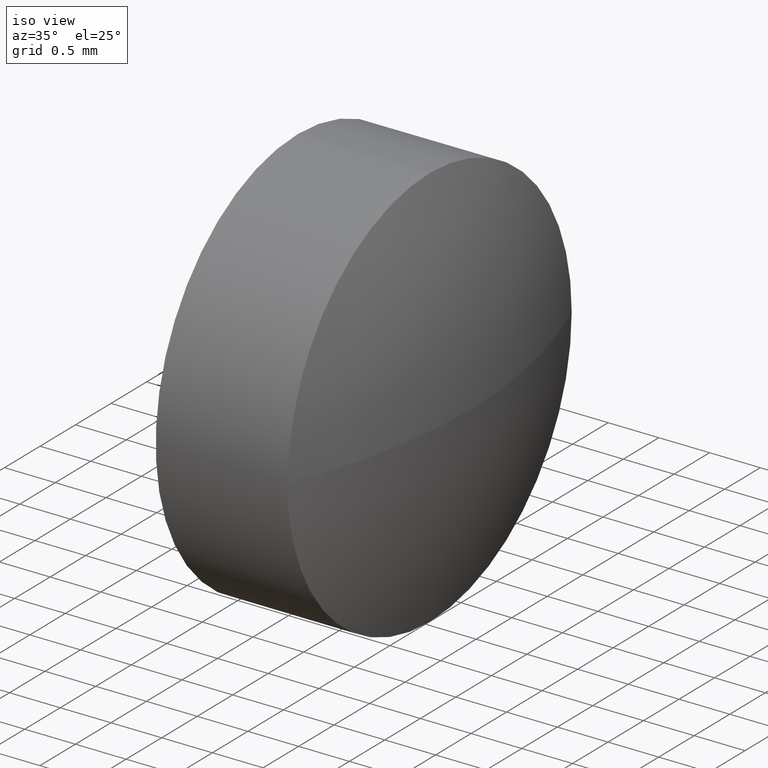
[diagram: clean part render]
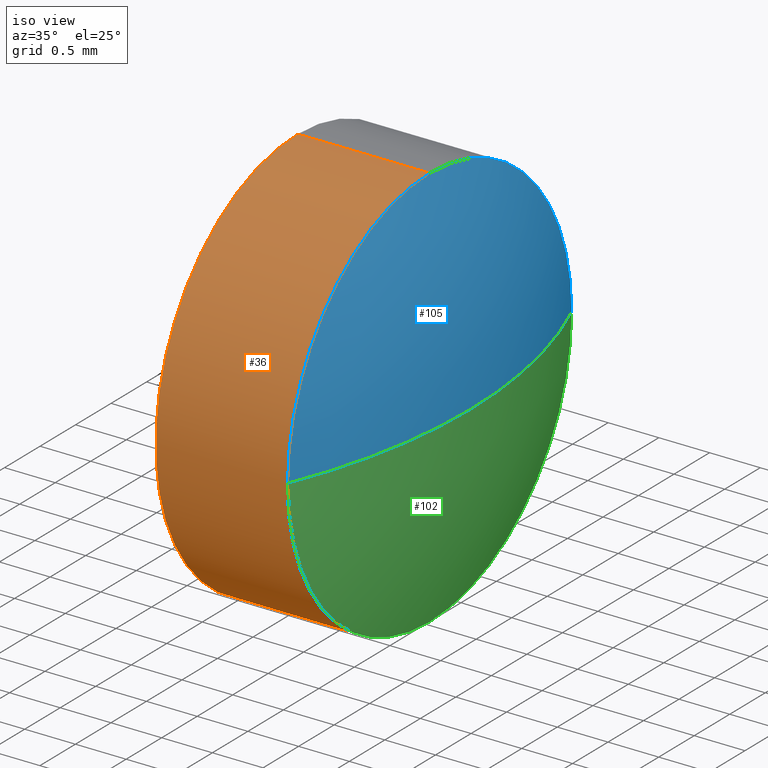
[diagram: same view with three faces highlighted in distinct colors, each labeled with its STEP entity id]
A machine part, iso view with three faces highlighted in distinct colors.
Their STEP definitions:

[orange] entity #36 — the highlighted cylindrical surface (partial cylindrical patch) has radius 2 mm, axis along (-1, -0, -0).
#5 = DIRECTION ( 'NONE',  ( 0.0000000000000000000, 0.0000000000000000000, 1.000000000000000000 ) ) ;
#12 = VECTOR ( 'NONE', #16, 1000.000000000000000 ) ;
#16 = DIRECTION ( 'NONE',  ( -1.000000000000000000, -0.0000000000000000000, -0.0000000000000000000 ) ) ;
#17 = DIRECTION ( 'NONE',  ( 0.0000000000000000000, 0.0000000000000000000, 1.000000000000000000 ) ) ;
#22 = CARTESIAN_POINT ( 'NONE',  ( 638.3832237115749400, -28.10203624254955600, -2.000000000000001800 ) ) ;
#23 = AXIS2_PLACEMENT_3D ( 'NONE', #54, #98, #71 ) ;
#30 = CIRCLE ( 'NONE', #23, 2.000000000000001800 ) ;
#31 = DIRECTION ( 'NONE',  ( -1.000000000000000000, -0.0000000000000000000, -0.0000000000000000000 ) ) ;
#35 = DIRECTION ( 'NONE',  ( -1.000000000000000000, -0.0000000000000000000, -0.0000000000000000000 ) ) ;
#36 = ADVANCED_FACE ( 'NONE', ( #169 ), #174, .T. ) ;
#37 = CARTESIAN_POINT ( 'NONE',  ( 640.1131078483556400, -28.10203624254955600, 2.000000000000001800 ) ) ;
#38 = EDGE_CURVE ( 'NONE', #40, #168, #62, .T. ) ;
#40 = VERTEX_POINT ( 'NONE', #181 ) ;
#46 = CARTESIAN_POINT ( 'NONE',  ( 638.3832237115749400, -28.10203624254955600, 0.0000000000000000000 ) ) ;
#51 = LINE ( 'NONE', #176, #81 ) ;
#54 = CARTESIAN_POINT ( 'NONE',  ( 638.8131078483555700, -28.10203624254955600, 0.0000000000000000000 ) ) ;
#58 = LINE ( 'NONE', #22, #12 ) ;
#62 = CIRCLE ( 'NONE', #136, 2.000000000000001800 ) ;
#63 = VERTEX_POINT ( 'NONE', #68 ) ;
#65 = CIRCLE ( 'NONE', #165, 2.000000000000001800 ) ;
#66 = ORIENTED_EDGE ( 'NONE', *, *, #38, .T. ) ;
#68 = CARTESIAN_POINT ( 'NONE',  ( 638.8131078483555700, -28.10203624254955600, 2.000000000000001800 ) ) ;
#71 = DIRECTION ( 'NONE',  ( 0.0000000000000000000, 0.0000000000000000000, 1.000000000000000000 ) ) ;
#74 = ORIENTED_EDGE ( 'NONE', *, *, #157, .T. ) ;
#75 = EDGE_LOOP ( 'NONE', ( #109, #74, #66, #152, #76 ) ) ;
#76 = ORIENTED_EDGE ( 'NONE', *, *, #171, .F. ) ;
#81 = VECTOR ( 'NONE', #159, 1000.000000000000000 ) ;
#86 = DIRECTION ( 'NONE',  ( 0.0000000000000000000, 0.0000000000000000000, 1.000000000000000000 ) ) ;
#98 = DIRECTION ( 'NONE',  ( -1.000000000000000000, -0.0000000000000000000, -0.0000000000000000000 ) ) ;
#104 = CARTESIAN_POINT ( 'NONE',  ( 638.8131078483555700, -28.10203624254955600, -2.000000000000001800 ) ) ;
#109 = ORIENTED_EDGE ( 'NONE', *, *, #167, .F. ) ;
#116 = CARTESIAN_POINT ( 'NONE',  ( 640.1131078483556400, -28.10203624254955600, 0.0000000000000000000 ) ) ;
#135 = DIRECTION ( 'NONE',  ( -1.000000000000000000, -0.0000000000000000000, -0.0000000000000000000 ) ) ;
#136 = AXIS2_PLACEMENT_3D ( 'NONE', #116, #31, #86 ) ;
#137 = CARTESIAN_POINT ( 'NONE',  ( 640.1131078483556400, -28.10203624254955600, 0.0000000000000000000 ) ) ;
#140 = VERTEX_POINT ( 'NONE', #104 ) ;
#152 = ORIENTED_EDGE ( 'NONE', *, *, #172, .T. ) ;
#157 = EDGE_CURVE ( 'NONE', #158, #40, #65, .T. ) ;
#158 = VERTEX_POINT ( 'NONE', #182 ) ;
#159 = DIRECTION ( 'NONE',  ( -1.000000000000000000, -0.0000000000000000000, -0.0000000000000000000 ) ) ;
#160 = AXIS2_PLACEMENT_3D ( 'NONE', #46, #35, #17 ) ;
#165 = AXIS2_PLACEMENT_3D ( 'NONE', #137, #135, #5 ) ;
#167 = EDGE_CURVE ( 'NONE', #158, #140, #58, .T. ) ;
#168 = VERTEX_POINT ( 'NONE', #37 ) ;
#169 = FACE_OUTER_BOUND ( 'NONE', #75, .T. ) ;
#171 = EDGE_CURVE ( 'NONE', #140, #63, #30, .T. ) ;
#172 = EDGE_CURVE ( 'NONE', #168, #63, #51, .T. ) ;
#174 = CYLINDRICAL_SURFACE ( 'NONE', #160, 2.000000000000001800 ) ;
#176 = CARTESIAN_POINT ( 'NONE',  ( 638.3832237115749400, -28.10203624254955600, 2.000000000000001800 ) ) ;
#181 = CARTESIAN_POINT ( 'NONE',  ( 640.1131078483556400, -30.10203624254954800, -2.449293598294668500E-016 ) ) ;
#182 = CARTESIAN_POINT ( 'NONE',  ( 640.1131078483556400, -28.10203624254955600, -2.000000000000001800 ) ) ;

[blue] entity #105 — the highlighted spherical surface has radius 5.2 mm.
#4 = CARTESIAN_POINT ( 'NONE',  ( 635.3131078483555700, -28.10203624254958000, 0.0000000000000000000 ) ) ;
#7 = ORIENTED_EDGE ( 'NONE', *, *, #151, .T. ) ;
#8 = AXIS2_PLACEMENT_3D ( 'NONE', #101, #144, #15 ) ;
#10 = AXIS2_PLACEMENT_3D ( 'NONE', #47, #21, #88 ) ;
#15 = DIRECTION ( 'NONE',  ( 0.0000000000000000000, 1.000000000000000000, 1.224646799147353000E-016 ) ) ;
#21 = DIRECTION ( 'NONE',  ( -1.000000000000000000, -0.0000000000000000000, -0.0000000000000000000 ) ) ;
#26 = EDGE_CURVE ( 'NONE', #92, #40, #149, .T. ) ;
#31 = DIRECTION ( 'NONE',  ( -1.000000000000000000, -0.0000000000000000000, -0.0000000000000000000 ) ) ;
#34 = ORIENTED_EDGE ( 'NONE', *, *, #38, .F. ) ;
#37 = CARTESIAN_POINT ( 'NONE',  ( 640.1131078483556400, -28.10203624254955600, 2.000000000000001800 ) ) ;
#38 = EDGE_CURVE ( 'NONE', #40, #168, #62, .T. ) ;
#40 = VERTEX_POINT ( 'NONE', #181 ) ;
#47 = CARTESIAN_POINT ( 'NONE',  ( 640.1131078483556400, -28.10203624254955600, 0.0000000000000000000 ) ) ;
#50 = CIRCLE ( 'NONE', #120, 5.199999999999982400 ) ;
#57 = CARTESIAN_POINT ( 'NONE',  ( 635.3131078483555700, -28.10203624254958000, 0.0000000000000000000 ) ) ;
#62 = CIRCLE ( 'NONE', #136, 2.000000000000001800 ) ;
#73 = DIRECTION ( 'NONE',  ( -0.0000000000000000000, 0.0000000000000000000, -1.000000000000000000 ) ) ;
#78 = ORIENTED_EDGE ( 'NONE', *, *, #26, .F. ) ;
#86 = DIRECTION ( 'NONE',  ( 0.0000000000000000000, 0.0000000000000000000, 1.000000000000000000 ) ) ;
#88 = DIRECTION ( 'NONE',  ( 0.0000000000000000000, 0.0000000000000000000, 1.000000000000000000 ) ) ;
#91 = FACE_OUTER_BOUND ( 'NONE', #186, .T. ) ;
#92 = VERTEX_POINT ( 'NONE', #119 ) ;
#94 = AXIS2_PLACEMENT_3D ( 'NONE', #4, #73, #97 ) ;
#97 = DIRECTION ( 'NONE',  ( 0.0000000000000000000, 1.000000000000000000, 0.0000000000000000000 ) ) ;
#101 = CARTESIAN_POINT ( 'NONE',  ( 635.3131078483555700, -28.10203624254958000, 0.0000000000000000000 ) ) ;
#105 = ADVANCED_FACE ( 'NONE', ( #91 ), #155, .T. ) ;
#116 = CARTESIAN_POINT ( 'NONE',  ( 640.1131078483556400, -28.10203624254955600, 0.0000000000000000000 ) ) ;
#118 = CARTESIAN_POINT ( 'NONE',  ( 640.1131078483556400, -26.10203624254958800, 0.0000000000000000000 ) ) ;
#119 = CARTESIAN_POINT ( 'NONE',  ( 640.5131078483556200, -28.10203624254958000, 0.0000000000000000000 ) ) ;
#120 = AXIS2_PLACEMENT_3D ( 'NONE', #57, #166, #124 ) ;
#124 = DIRECTION ( 'NONE',  ( 1.000000000000000000, 0.0000000000000000000, 0.0000000000000000000 ) ) ;
#126 = CIRCLE ( 'NONE', #10, 2.000000000000001800 ) ;
#128 = EDGE_CURVE ( 'NONE', #168, #183, #126, .T. ) ;
#136 = AXIS2_PLACEMENT_3D ( 'NONE', #116, #31, #86 ) ;
#138 = ORIENTED_EDGE ( 'NONE', *, *, #128, .F. ) ;
#144 = DIRECTION ( 'NONE',  ( 0.0000000000000000000, 1.224646799147353200E-016, -1.000000000000000000 ) ) ;
#149 = CIRCLE ( 'NONE', #8, 5.200000000000009900 ) ;
#151 = EDGE_CURVE ( 'NONE', #92, #183, #50, .T. ) ;
#155 = SPHERICAL_SURFACE ( 'NONE', #94, 5.200000000000008200 ) ;
#166 = DIRECTION ( 'NONE',  ( -0.0000000000000000000, 0.0000000000000000000, 1.000000000000000000 ) ) ;
#168 = VERTEX_POINT ( 'NONE', #37 ) ;
#181 = CARTESIAN_POINT ( 'NONE',  ( 640.1131078483556400, -30.10203624254954800, -2.449293598294668500E-016 ) ) ;
#183 = VERTEX_POINT ( 'NONE', #118 ) ;
#186 = EDGE_LOOP ( 'NONE', ( #78, #7, #138, #34 ) ) ;

[green] entity #102 — the highlighted spherical surface has radius 5.2 mm.
#5 = DIRECTION ( 'NONE',  ( 0.0000000000000000000, 0.0000000000000000000, 1.000000000000000000 ) ) ;
#8 = AXIS2_PLACEMENT_3D ( 'NONE', #101, #144, #15 ) ;
#15 = DIRECTION ( 'NONE',  ( 0.0000000000000000000, 1.000000000000000000, 1.224646799147353000E-016 ) ) ;
#26 = EDGE_CURVE ( 'NONE', #92, #40, #149, .T. ) ;
#27 = ORIENTED_EDGE ( 'NONE', *, *, #157, .F. ) ;
#33 = CARTESIAN_POINT ( 'NONE',  ( 640.1131078483556400, -28.10203624254955600, 0.0000000000000000000 ) ) ;
#40 = VERTEX_POINT ( 'NONE', #181 ) ;
#43 = ORIENTED_EDGE ( 'NONE', *, *, #151, .F. ) ;
#45 = DIRECTION ( 'NONE',  ( 0.0000000000000000000, 0.0000000000000000000, 1.000000000000000000 ) ) ;
#50 = CIRCLE ( 'NONE', #120, 5.199999999999982400 ) ;
#56 = DIRECTION ( 'NONE',  ( 0.0000000000000000000, 1.000000000000000000, 0.0000000000000000000 ) ) ;
#57 = CARTESIAN_POINT ( 'NONE',  ( 635.3131078483555700, -28.10203624254958000, 0.0000000000000000000 ) ) ;
#59 = EDGE_LOOP ( 'NONE', ( #43, #117, #27, #111 ) ) ;
#60 = EDGE_CURVE ( 'NONE', #183, #158, #139, .T. ) ;
#65 = CIRCLE ( 'NONE', #165, 2.000000000000001800 ) ;
#92 = VERTEX_POINT ( 'NONE', #119 ) ;
#101 = CARTESIAN_POINT ( 'NONE',  ( 635.3131078483555700, -28.10203624254958000, 0.0000000000000000000 ) ) ;
#102 = ADVANCED_FACE ( 'NONE', ( #180 ), #164, .T. ) ;
#111 = ORIENTED_EDGE ( 'NONE', *, *, #60, .F. ) ;
#117 = ORIENTED_EDGE ( 'NONE', *, *, #26, .T. ) ;
#118 = CARTESIAN_POINT ( 'NONE',  ( 640.1131078483556400, -26.10203624254958800, 0.0000000000000000000 ) ) ;
#119 = CARTESIAN_POINT ( 'NONE',  ( 640.5131078483556200, -28.10203624254958000, 0.0000000000000000000 ) ) ;
#120 = AXIS2_PLACEMENT_3D ( 'NONE', #57, #166, #124 ) ;
#124 = DIRECTION ( 'NONE',  ( 1.000000000000000000, 0.0000000000000000000, 0.0000000000000000000 ) ) ;
#133 = DIRECTION ( 'NONE',  ( -1.000000000000000000, -0.0000000000000000000, -0.0000000000000000000 ) ) ;
#135 = DIRECTION ( 'NONE',  ( -1.000000000000000000, -0.0000000000000000000, -0.0000000000000000000 ) ) ;
#137 = CARTESIAN_POINT ( 'NONE',  ( 640.1131078483556400, -28.10203624254955600, 0.0000000000000000000 ) ) ;
#139 = CIRCLE ( 'NONE', #153, 2.000000000000001800 ) ;
#144 = DIRECTION ( 'NONE',  ( 0.0000000000000000000, 1.224646799147353200E-016, -1.000000000000000000 ) ) ;
#146 = CARTESIAN_POINT ( 'NONE',  ( 635.3131078483555700, -28.10203624254958000, 0.0000000000000000000 ) ) ;
#148 = DIRECTION ( 'NONE',  ( -0.0000000000000000000, 0.0000000000000000000, -1.000000000000000000 ) ) ;
#149 = CIRCLE ( 'NONE', #8, 5.200000000000009900 ) ;
#150 = AXIS2_PLACEMENT_3D ( 'NONE', #146, #148, #56 ) ;
#151 = EDGE_CURVE ( 'NONE', #92, #183, #50, .T. ) ;
#153 = AXIS2_PLACEMENT_3D ( 'NONE', #33, #133, #45 ) ;
#157 = EDGE_CURVE ( 'NONE', #158, #40, #65, .T. ) ;
#158 = VERTEX_POINT ( 'NONE', #182 ) ;
#164 = SPHERICAL_SURFACE ( 'NONE', #150, 5.200000000000008200 ) ;
#165 = AXIS2_PLACEMENT_3D ( 'NONE', #137, #135, #5 ) ;
#166 = DIRECTION ( 'NONE',  ( -0.0000000000000000000, 0.0000000000000000000, 1.000000000000000000 ) ) ;
#180 = FACE_OUTER_BOUND ( 'NONE', #59, .T. ) ;
#181 = CARTESIAN_POINT ( 'NONE',  ( 640.1131078483556400, -30.10203624254954800, -2.449293598294668500E-016 ) ) ;
#182 = CARTESIAN_POINT ( 'NONE',  ( 640.1131078483556400, -28.10203624254955600, -2.000000000000001800 ) ) ;
#183 = VERTEX_POINT ( 'NONE', #118 ) ;